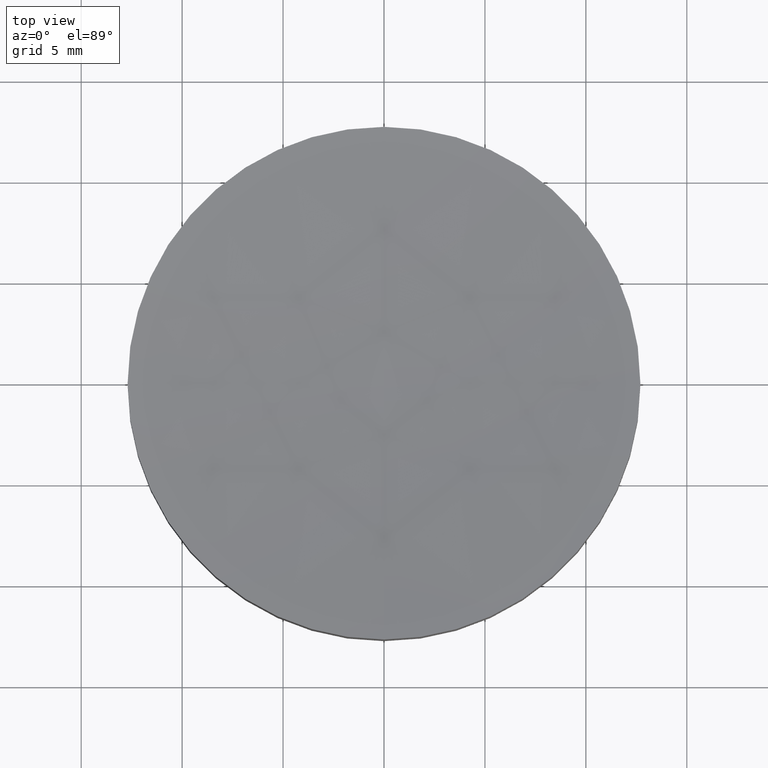
[diagram: clean part render]
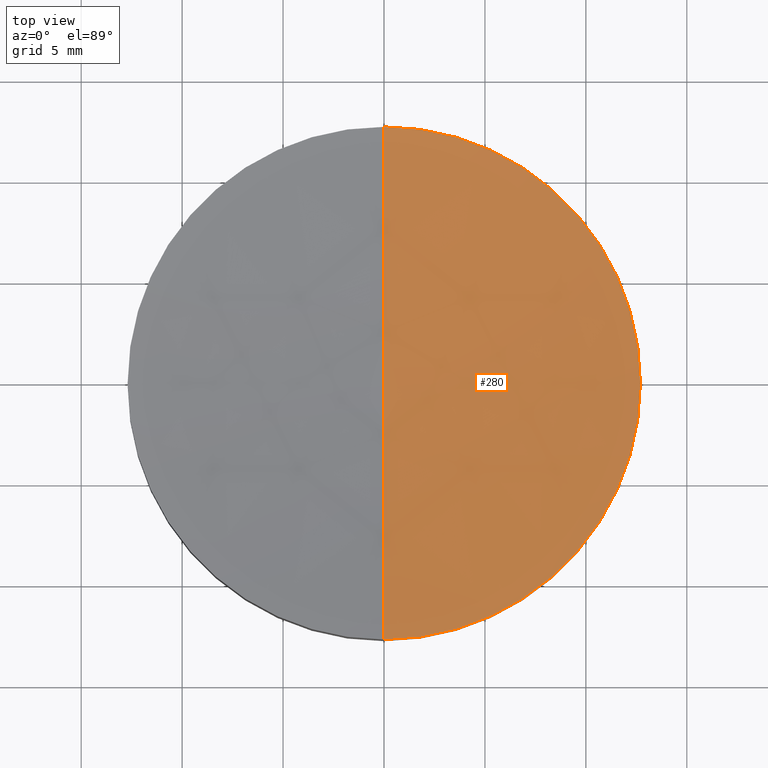
[diagram: same view with one face highlighted and labeled with its STEP entity id]
A machine part, top view. The second image highlights one B-rep face of the part: STEP entity #280.
In plain terms, the highlighted face is a freeform B-spline surface patch.
Its self-contained STEP definition (entity closure, byte-faithful):
#2 = CARTESIAN_POINT ( 'NONE',  ( 4.996003610813200500E-016, 2.442490654175340100E-015, 3.976089718365059400 ) ) ;
#7 = CARTESIAN_POINT ( 'NONE',  ( 12.80843556786029500, 4.305750462270683700, 3.721136836858725400 ) ) ;
#18 = CARTESIAN_POINT ( 'NONE',  ( 12.69999999999999900, 2.442490654175340100E-015, 3.976089718365059400 ) ) ;
#20 = VERTEX_POINT ( 'NONE', #18 ) ;
#29 = CARTESIAN_POINT ( 'NONE',  ( 2.255140518769849200E-014, -12.85162862928874500, 3.994803794327112600 ) ) ;
#33 = CARTESIAN_POINT ( 'NONE',  ( 1.734723475976807100E-014, 4.305750462270680100, 2.933712597558335600 ) ) ;
#37 = FACE_OUTER_BOUND ( 'NONE', #46, .T. ) ;
#46 = EDGE_LOOP ( 'NONE', ( #69, #148, #243 ) ) ;
#50 = CARTESIAN_POINT ( 'NONE',  ( 1.421085471520200100E-014, 7.105427357601000300E-015, 107.5000000000000000 ) ) ;
#63 = CARTESIAN_POINT ( 'NONE',  ( -1.425310075416590300E-014, 12.69999999999996600, 3.976089718365062100 ) ) ;
#65 = DIRECTION ( 'NONE',  ( -0.0000000000000000000, -0.0000000000000000000, -1.000000000000000000 ) ) ;
#67 = DIRECTION ( 'NONE',  ( -2.786057141690520200E-016, 1.000000000000000000, 2.661129013962503900E-016 ) ) ;
#69 = ORIENTED_EDGE ( 'NONE', *, *, #249, .F. ) ;
#85 = DIRECTION ( 'NONE',  ( 1.000000000000000000, 0.0000000000000000000, 0.0000000000000000000 ) ) ;
#89 = CARTESIAN_POINT ( 'NONE',  ( 1.908195823574487800E-014, -4.305750462270667700, 2.933712597558348500 ) ) ;
#91 = DIRECTION ( 'NONE',  ( -0.0000000000000000000, -0.0000000000000000000, -1.000000000000000000 ) ) ;
#94 = EDGE_CURVE ( 'NONE', #118, #201, #104, .T. ) ;
#104 = CIRCLE ( 'NONE', #255, 104.2999999999999800 ) ;
#114 = CARTESIAN_POINT ( 'NONE',  ( 4.282919401184637200, -4.305750462270666800, 2.933712597558349300 ) ) ;
#116 = EDGE_CURVE ( 'NONE', #20, #201, #151, .T. ) ;
#117 = CARTESIAN_POINT ( 'NONE',  ( 12.80843556786029500, -4.305750462270665000, 3.721136836858739600 ) ) ;
#118 = VERTEX_POINT ( 'NONE', #63 ) ;
#148 = ORIENTED_EDGE ( 'NONE', *, *, #94, .T. ) ;
#150 =( BOUNDED_SURFACE ( )  B_SPLINE_SURFACE ( 3, 3, ( 
 ( #186, #160, #190, #211 ),
 ( #7, #166, #256, #33 ),
 ( #117, #226, #114, #89 ),
 ( #189, #253, #162, #29 ) ),
 .UNSPECIFIED., .F., .F., .T. ) 
 B_SPLINE_SURFACE_WITH_KNOTS ( ( 4, 4 ),
 ( 4, 4 ),
 ( 0.0000000000000000000, 1.000000000000000000 ),
 ( 0.0000000000000000000, 1.000000000000000000 ),
 .UNSPECIFIED. ) 
 GEOMETRIC_REPRESENTATION_ITEM ( )  RATIONAL_B_SPLINE_SURFACE ( (
 ( 1.000000000000000000, 0.9987437524745305100, 0.9987437524745305100, 1.000000000000000000),
 ( 0.9949197584255219400, 0.9936698929409592000, 0.9936698929409592000, 0.9949197584255219400),
 ( 0.9949197584255219400, 0.9936698929409592000, 0.9936698929409592000, 0.9949197584255219400),
 ( 1.000000000000000000, 0.9987437524745305100, 0.9987437524745305100, 1.000000000000000000) ) ) 
 REPRESENTATION_ITEM ( '' )  SURFACE ( )  );
#151 = CIRCLE ( 'NONE', #173, 12.69999999999999900 ) ;
#155 = DIRECTION ( 'NONE',  ( -1.000000000000000000, -2.786057141690520200E-016, 2.407720383784880200E-016 ) ) ;
#160 = CARTESIAN_POINT ( 'NONE',  ( 8.470927846836898900, 12.85162862928876000, 4.254941864040543600 ) ) ;
#162 = CARTESIAN_POINT ( 'NONE',  ( 4.239458280148791200, -12.85162862928874200, 3.994803794327111700 ) ) ;
#166 = CARTESIAN_POINT ( 'NONE',  ( 8.557768192019967300, 4.305750462270682800, 3.196517491990112700 ) ) ;
#168 = DIRECTION ( 'NONE',  ( 1.000000000000000000, -1.776356839400250500E-015, 0.0000000000000000000 ) ) ;
#173 = AXIS2_PLACEMENT_3D ( 'NONE', #2, #65, #85 ) ;
#186 = CARTESIAN_POINT ( 'NONE',  ( 12.67846138054761200, 12.85162862928876100, 4.774237610048345500 ) ) ;
#189 = CARTESIAN_POINT ( 'NONE',  ( 12.67846138054761700, -12.85162862928874200, 4.774237610048359700 ) ) ;
#190 = CARTESIAN_POINT ( 'NONE',  ( 4.239458280148784100, 12.85162862928876000, 3.994803794327098000 ) ) ;
#198 = AXIS2_PLACEMENT_3D ( 'NONE', #230, #91, #168 ) ;
#201 = VERTEX_POINT ( 'NONE', #295 ) ;
#211 = CARTESIAN_POINT ( 'NONE',  ( 1.561251128379126400E-014, 12.85162862928875800, 3.994803794327098900 ) ) ;
#226 = CARTESIAN_POINT ( 'NONE',  ( 8.557768192019969100, -4.305750462270665000, 3.196517491990126500 ) ) ;
#230 = CARTESIAN_POINT ( 'NONE',  ( 4.996003610813200500E-016, 2.442490654175340100E-015, 3.976089718365059400 ) ) ;
#243 = ORIENTED_EDGE ( 'NONE', *, *, #116, .F. ) ;
#249 = EDGE_CURVE ( 'NONE', #118, #20, #288, .T. ) ;
#253 = CARTESIAN_POINT ( 'NONE',  ( 8.470927846836906000, -12.85162862928874200, 4.254941864040557900 ) ) ;
#255 = AXIS2_PLACEMENT_3D ( 'NONE', #50, #155, #67 ) ;
#256 = CARTESIAN_POINT ( 'NONE',  ( 4.282919401184636300, 4.305750462270681000, 2.933712597558334700 ) ) ;
#280 = ADVANCED_FACE ( 'NONE', ( #37 ), #150, .F. ) ;
#288 = CIRCLE ( 'NONE', #198, 12.69999999999999900 ) ;
#295 = CARTESIAN_POINT ( 'NONE',  ( -7.176515614272006900E-015, -12.69999999999995500, 3.976089718365062100 ) ) ;